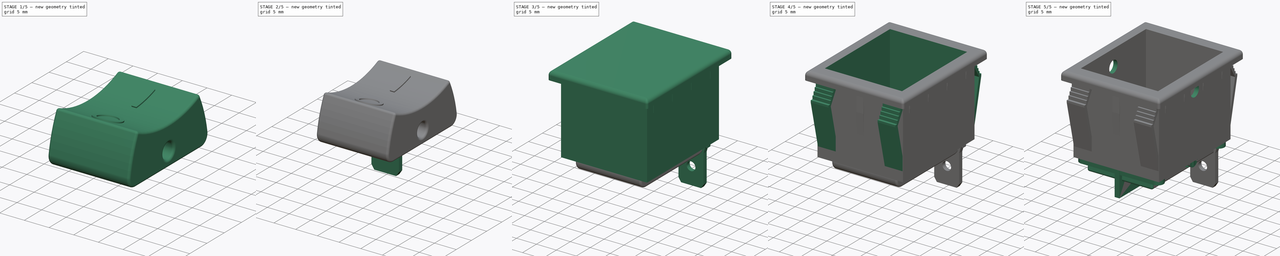
[diagram: build sequence overview — one tinted view per stage of 5, left to right]
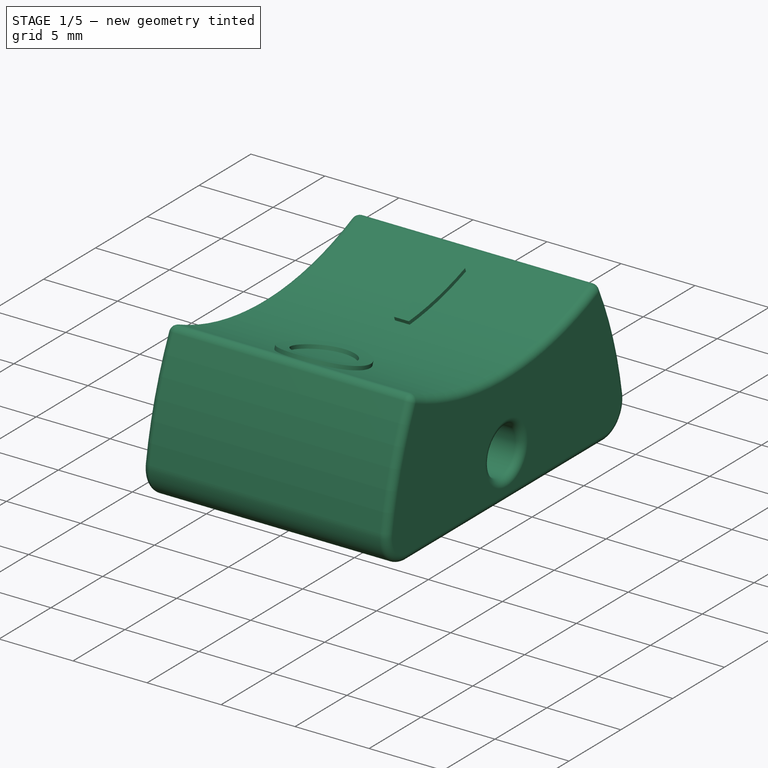
[diagram: stage 1 of 5 — iso view after this stage's code; geometry added in this stage tinted green]
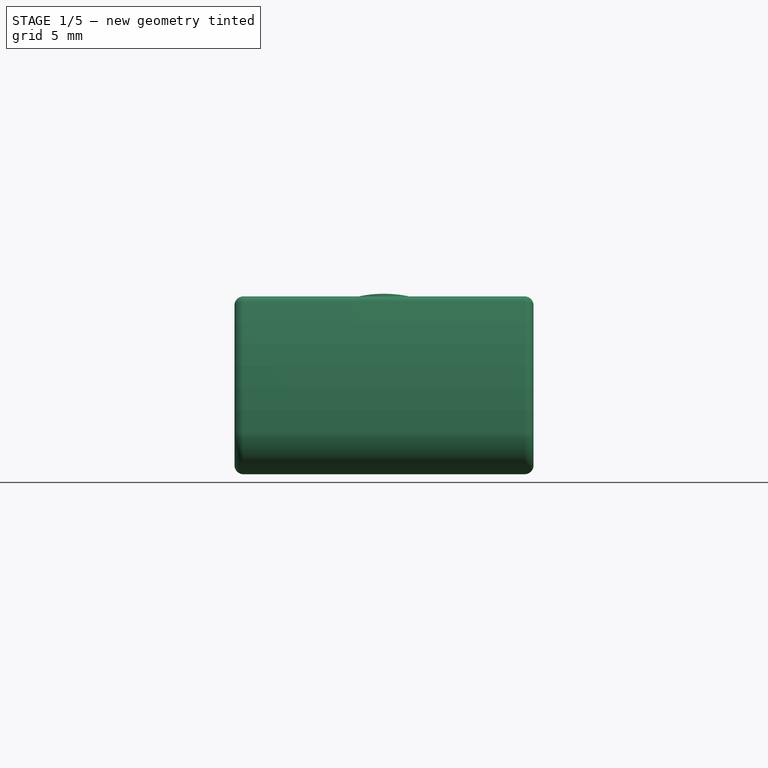
[diagram: stage 1 of 5 — front view after this stage's code; geometry added in this stage tinted green]
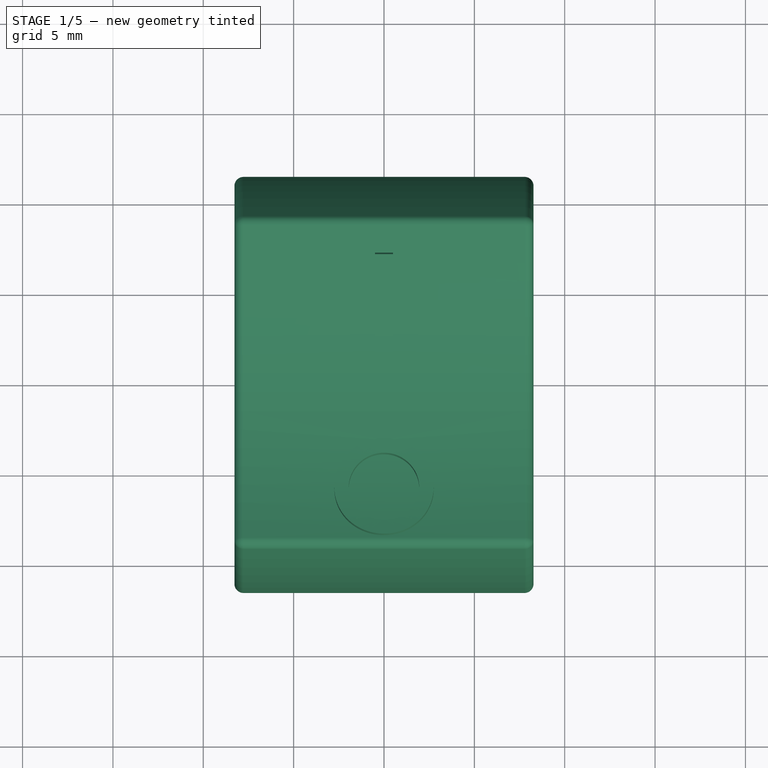
[diagram: stage 1 of 5 — top view after this stage's code; geometry added in this stage tinted green]
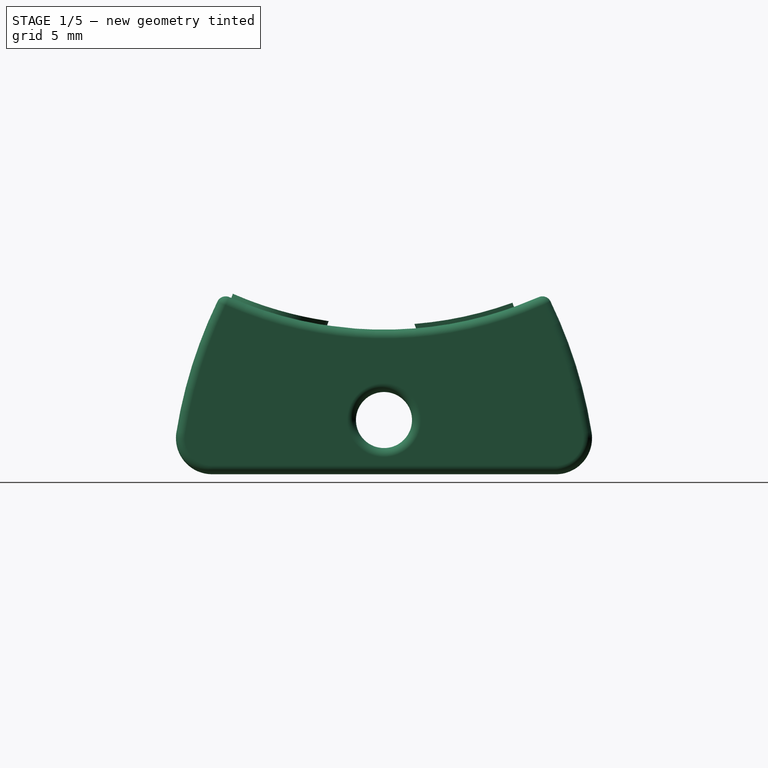
[diagram: stage 1 of 5 — right view after this stage's code; geometry added in this stage tinted green]
FCSTD DOCUMENT  (FreeCAD 0.18R4 (GitTag))
Label: Mini Rocker Switch red led
License: CreativeCommons Attribution
LicenseURL: http://creativecommons.org/licenses/by/4.0/
objects: Sketcher::SketchObject×17, PartDesign::Pad×13, PartDesign::Body×8, PartDesign::Fillet×5, PartDesign::Pocket×4, PartDesign::FeatureBase×4, PartDesign::Plane×3, PartDesign::Mirrored×2, PartDesign::MultiTransform×1, Part::Feature×1, PartDesign::LinearPattern×1, App::Part×1
note: 76 computed .brp shape members not serialized (recipe doc carries the construction recipe); baked Part::Feature solids carry a one-line shape summary decoded from their .brp

FEATURE [PartDesign::Body] Body001  label="pin"
  Group = -> [Sketch014,Pad007]
  Origin = -> Origin002
  Placement = pos=(0,0,16) rot=(0,0,1;0rad)
  Tip = -> Pad007
FEATURE [Sketcher::SketchObject] Sketch015
  MapMode = 5
  Placement = pos=(0,0,0) rot=(0.57735,0.57735,0.57735;2.0944rad)
  Support = -> [YZ_Plane003]
  sketch-geometry (7):
    g0: Circle CenterX=0 CenterY=0 CenterZ=0 NormalX=0 NormalY=0 NormalZ=1 AngleXU=0 Radius=1.55
    g1: LineSegment StartX=-11.75 StartY=-3 StartZ=0 EndX=11.75 EndY=-3 EndZ=0
    g2: ArcOfCircle CenterX=14.1907 CenterY=-4.75556 CenterZ=0 NormalX=0 NormalY=0 NormalZ=1 AngleXU=0 Radius=26 StartAngle=2.67243 EndAngle=3.07402
    g3: ArcOfCircle CenterX=0 CenterY=26.25 CenterZ=0 NormalX=0 NormalY=0 NormalZ=1 AngleXU=0 Radius=21.25 StartAngle=4.27505 EndAngle=5.14973
    g4: ArcOfCircle CenterX=-14.1907 CenterY=-4.75556 CenterZ=0 NormalX=0 NormalY=0 NormalZ=1 AngleXU=0 Radius=26 StartAngle=0.0675729 EndAngle=0.46916
    g5: LineSegment [constr] StartX=-9 StartY=7 StartZ=0 EndX=9 EndY=7 EndZ=0
    g6: LineSegment [constr] StartX=1e-16 StartY=7 StartZ=0 EndX=1e-16 EndY=5 EndZ=0
  constraints (21):
    c: Coincident(g0,g-1)
    c: Coincident(g2,g1)
    c: PointOnObject(g3,g-2)
    c: Coincident(g3,g2)
    c: Coincident(g4,g3)
    c: Coincident(g4,g1)
    c: Coincident(g5,g2)
    c: Horizontal(g5)
    c: Coincident(g3,g5)
    c: PointOnObject(g6,g3)
    c: Vertical(g6)
    c: DistanceY(g6,g6) = 2
    c: Equal(g4,g2)
    c: Symmetric(g1,g1,g-2)
    c: DistanceX(g1,g1) = 23.5
    c: DistanceY(g1,g0) = 3
    c: DistanceX(g5,g5) = 18
    c: Radius(g4) = 26
    c: Symmetric(g2,g3,g6)
    c: DistanceY(g1,g2) = 10
    c: Radius(g0) = 1.55
FEATURE [PartDesign::Pad] Pad008
  Length = 16.55
  Length2 = 100
  Midplane = true
  Placement = pos=(0,0,0) rot=(0.57735,0.57735,0.57735;2.0944rad)
  Profile = -> Sketch015
  Refine = true
  Type = 0
FEATURE [PartDesign::Plane] DatumPlane
  AttachmentOffset = pos=(0,0,0) rot=(1,0,0;0.349066rad)
  Length = 24.5285
  MapMode = 2
  Placement = pos=(0,0,0) rot=(1,0,0;0.349066rad)
  ResizeMode = 0
  Support = -> [XY_Plane003]
  Width = 30.1628
FEATURE [Sketcher::SketchObject] Sketch016
  ExternalGeometry = -> [Pad008]
  MapMode = 5
  Placement = pos=(0,0,0) rot=(1,0,0;0.349066rad)
  Support = -> [DatumPlane]
  sketch-geometry (4):
    g0: LineSegment StartX=-0.5 StartY=8.9 StartZ=0 EndX=0.5 EndY=8.9 EndZ=0
    g1: LineSegment StartX=0.5 StartY=8.9 StartZ=0 EndX=0.5 EndY=3.4 EndZ=0
    g2: LineSegment StartX=0.5 StartY=3.4 StartZ=0 EndX=-0.5 EndY=3.4 EndZ=0
    g3: LineSegment StartX=-0.5 StartY=3.4 StartZ=0 EndX=-0.5 EndY=8.9 EndZ=0
  constraints (11):
    c: Coincident(g0,g1)
    c: Coincident(g1,g2)
    c: Coincident(g2,g3)
    c: Coincident(g3,g0)
    c: Horizontal(g2)
    c: Vertical(g1)
    c: Vertical(g3)
    c: Symmetric(g0,g0,g-2)
    c: DistanceY(g1,g1) = 5.5
    c: DistanceX(g0,g0) = 1
    c: DistanceY(g-1,g1) = 3.4
FEATURE [PartDesign::Pad] Pad009
  BaseFeature = -> Pad008
  Length = 8
  Length2 = 100
  Placement = pos=(0,0,0) rot=(0.57735,0.57735,0.57735;2.0944rad)
  Profile = -> Sketch016
  Refine = true
  Type = 0
FEATURE [PartDesign::Plane] DatumPlane001
  AttachmentOffset = pos=(0,0,0) rot=(-1,0,0;0.349066rad)
  Length = 24.5285
  MapMode = 5
  Placement = pos=(0,0,0) rot=(-1,0,0;0.349066rad)
  ResizeMode = 0
  Support = -> [XY_Plane003]
  Width = 30.1628
FEATURE [Sketcher::SketchObject] Sketch017
  MapMode = 5
  Placement = pos=(0,0,0) rot=(-1,0,0;0.349066rad)
  Support = -> [DatumPlane001]
  sketch-geometry (2):
    g0: Circle CenterX=0 CenterY=-7.5 CenterZ=0 NormalX=0 NormalY=0 NormalZ=1 AngleXU=0 Radius=2.75
    g1: Circle CenterX=0 CenterY=-7.5 CenterZ=0 NormalX=0 NormalY=0 NormalZ=1 AngleXU=0 Radius=1.95
  constraints (5):
    c: PointOnObject(g0,g-2)
    c: Coincident(g1,g0)
    c: Radius(g1) = 1.95
    c: Radius(g0) = 2.75
    c: DistanceY(g0,g-1) = 7.5
FEATURE [PartDesign::Pad] Pad010
  BaseFeature = -> Pad009
  Length = 7
  Length2 = 100
  Placement = pos=(0,0,0) rot=(0.57735,0.57735,0.57735;2.0944rad)
  Profile = -> Sketch017
  Refine = true
  Type = 0
FEATURE [Sketcher::SketchObject] Sketch018
  ExternalGeometry = -> [Pad010]
  MapMode = 5
  Placement = pos=(0,0,0) rot=(0.57735,0.57735,0.57735;2.0944rad)
  Support = -> [YZ_Plane003]
  sketch-geometry (5):
    g0: ArcOfCircle CenterX=3.2e-15 CenterY=26.25 CenterZ=0 NormalX=0 NormalY=0 NormalZ=1 AngleXU=0 Radius=21 StartAngle=4.21607 EndAngle=5.20871
    g1: LineSegment StartX=-10 StartY=13.7838 StartZ=0 EndX=10 EndY=13.7838 EndZ=0
    g2: LineSegment StartX=10 StartY=13.7838 StartZ=0 EndX=10 EndY=7.78381 EndZ=0
    g3: LineSegment [constr] StartX=10 StartY=7.78381 StartZ=0 EndX=-10 EndY=7.78381 EndZ=0
    g4: LineSegment StartX=-10 StartY=7.78381 StartZ=0 EndX=-10 EndY=13.7838 EndZ=0
  constraints (14):
    c: Coincident(g0,g-3)
    c: Coincident(g1,g2)
    c: Coincident(g2,g3)
    c: Coincident(g3,g4)
    c: Coincident(g4,g1)
    c: Horizontal(g1)
    c: Horizontal(g3)
    c: Vertical(g2)
    c: Vertical(g4)
    c: Coincident(g2,g0)
    c: Coincident(g0,g3)
    c: DistanceX(g1,g1) = 20
    c: DistanceY(g2,g2) = 6
    c: Radius(g0) = 21
FEATURE [PartDesign::Pocket] Pocket007
  BaseFeature = -> Pad010
  Length = 5
  Length2 = 100
  Midplane = true
  Placement = pos=(0,0,0) rot=(0.57735,0.57735,0.57735;2.0944rad)
  Profile = -> Sketch018
  Refine = true
  Type = 1
FEATURE [PartDesign::Body] Body007
  Group = -> [Clone003]
  Origin = -> Origin008
  Placement = pos=(0,-11,0) rot=(0,0,1;0rad)
  Tip = -> Clone003
FEATURE [PartDesign::Fillet] Fillet
  Base = -> Pocket007 [Edge1,Edge2]
  BaseFeature = -> Pocket007
  Placement = pos=(0,0,0) rot=(0.57735,0.57735,0.57735;2.0944rad)
  Radius = 2
FEATURE [PartDesign::Fillet] Fillet004
  Base = -> Fillet [Face2,Face5,Edge20,Edge19]
  BaseFeature = -> Fillet
  Placement = pos=(0,0,0) rot=(0.57735,0.57735,0.57735;2.0944rad)
  Radius = 0.5
FEATURE [PartDesign::Body] Body002  label="switch"
  Group = -> [Sketch015,Pad008,DatumPlane,Sketch016,Pad009,DatumPlane001,Sketch017,Pad010,Sketch018,Pocket007,Fillet001,Fillet,Fillet004]
  Origin = -> Origin003
  Placement = pos=(0,0,16) rot=(1,0,0;6.02139rad)
  Tip = -> Fillet004
FEATURE [App::Part] Part
  Group = -> [Body,Body001,Body002,Body003,Body004,Body005,Body006,Body007]
  Origin = -> Origin001
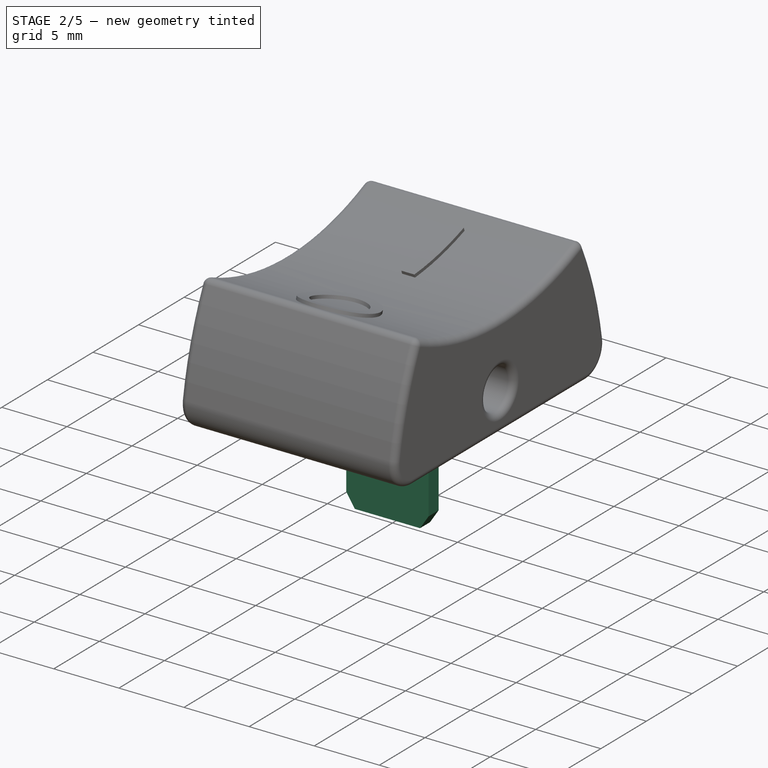
[diagram: stage 2 of 5 — iso view after this stage's code; geometry added in this stage tinted green]
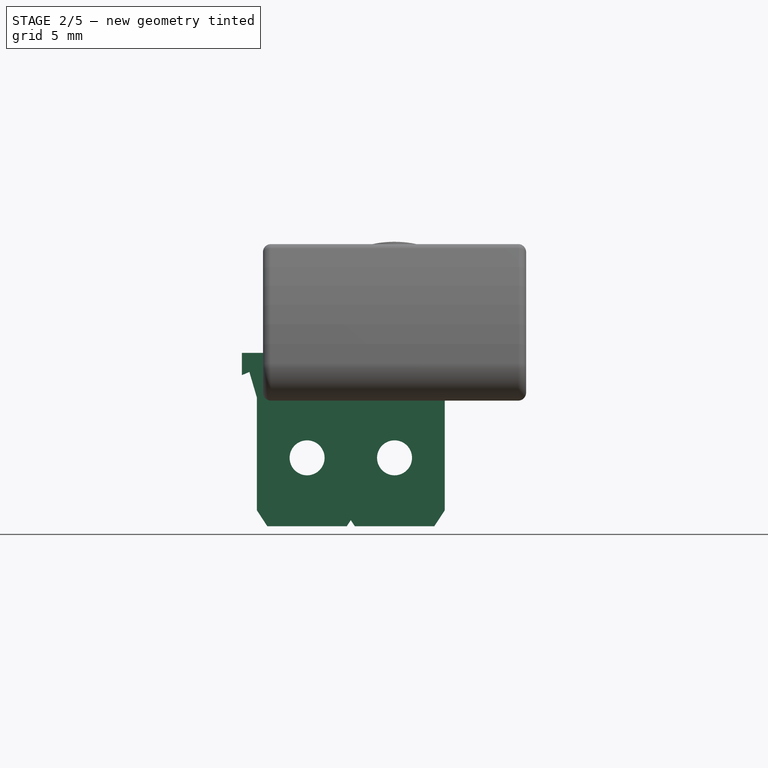
[diagram: stage 2 of 5 — front view after this stage's code; geometry added in this stage tinted green]
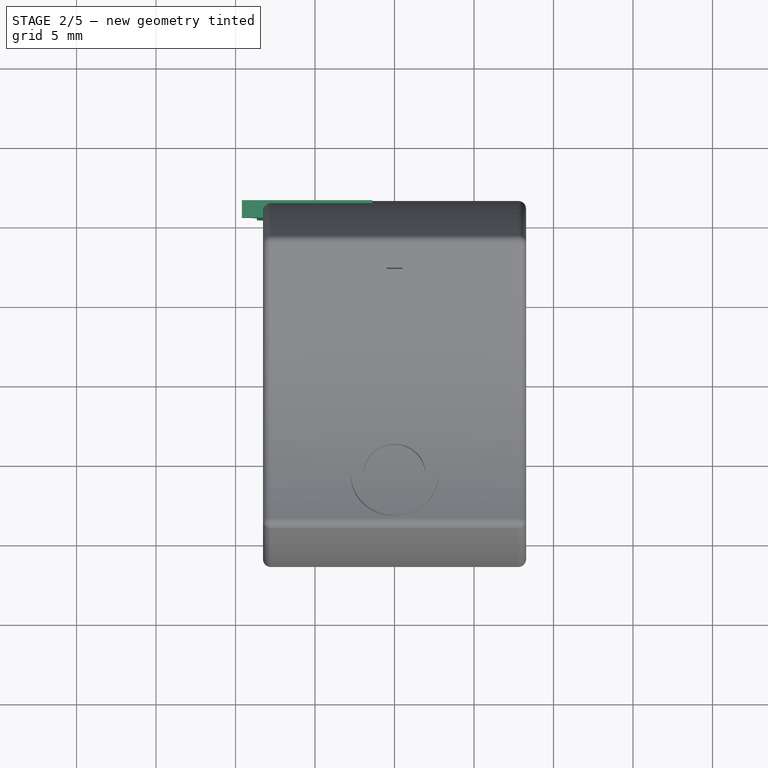
[diagram: stage 2 of 5 — top view after this stage's code; geometry added in this stage tinted green]
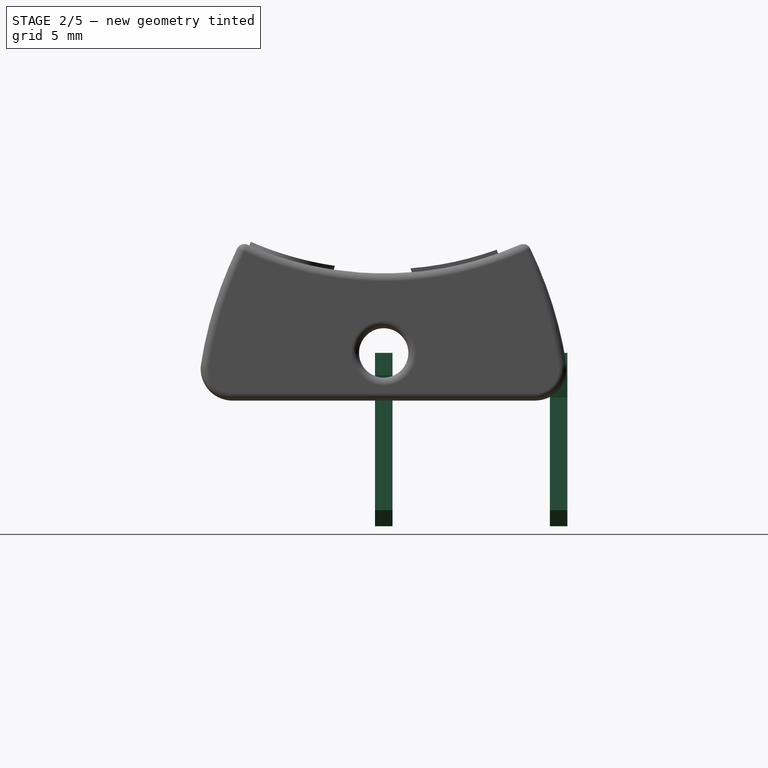
[diagram: stage 2 of 5 — right view after this stage's code; geometry added in this stage tinted green]
FEATURE [Sketcher::SketchObject] Sketch010
  MapMode = 5
  Placement = pos=(0,0,0) rot=(1,0,0;1.5708rad)
  Support = -> [XZ_Plane]
  sketch-geometry (8):
    g0: LineSegment StartX=-4.1 StartY=0 StartZ=0 EndX=4.1 EndY=0 EndZ=0
    g1: LineSegment StartX=4.1 StartY=0 StartZ=0 EndX=4.1 EndY=-2.8 EndZ=0
    g2: LineSegment StartX=3.16 StartY=-10.9 StartZ=0 EndX=-3.16 EndY=-10.9 EndZ=0
    g3: LineSegment StartX=-4.1 StartY=-2.8 StartZ=0 EndX=-4.1 EndY=0 EndZ=0
    g4: LineSegment StartX=-4.1 StartY=-2.8 StartZ=0 EndX=-3.16 EndY=-2.8 EndZ=0
    g5: LineSegment StartX=-3.16 StartY=-2.8 StartZ=0 EndX=-3.16 EndY=-10.9 EndZ=0
    g6: LineSegment StartX=3.16 StartY=-10.9 StartZ=0 EndX=3.16 EndY=-2.8 EndZ=0
    g7: LineSegment StartX=3.16 StartY=-2.8 StartZ=0 EndX=4.1 EndY=-2.8 EndZ=0
  constraints (23):
    c: Coincident(g0,g1)
    c: Coincident(g3,g0)
    c: Horizontal(g0)
    c: Horizontal(g2)
    c: Vertical(g1)
    c: Vertical(g3)
    c: Symmetric(g0,g0,g-1)
    c: DistanceX(g0,g0) = 8.2
    c: DistanceY(g2,g3) = 10.9
    c: Horizontal(g4)
    c: Coincident(g4,g5)
    c: Vertical(g5)
    c: Vertical(g6)
    c: Coincident(g6,g7)
    c: Horizontal(g7)
    c: Equal(g7,g4)
    c: Equal(g6,g5)
    c: DistanceY(g5,g5) = 8.1
    c: Coincident(g1,g7)
    c: Coincident(g3,g4)
    c: Coincident(g2,g6)
    c: Coincident(g2,g5)
    c: DistanceX(g2,g2) = 6.32
FEATURE [PartDesign::Pad] Pad006
  Length = 1.1
  Length2 = 100
  Midplane = true
  Placement = pos=(0,0,0) rot=(1,0,0;1.5708rad)
  Profile = -> Sketch010
  Refine = true
  Type = 0
FEATURE [PartDesign::Body] Body003  label="plasticbody"
  Group = -> [Sketch,Pad,Sketch001,Pad001,Fillet002,Fillet003,Sketch019,Pad011,Sketch020,Pad012,Sketch021,Pad013,Sketch022,Pocket,DatumPlane002,Sketch023,Pad014,MultiTransform,Mirrored,Mirrored001,Sketch024,Pad015,Sketch025,Pad016,LinearPattern,Sketch026,Pocket008]
  Origin = -> Origin004
  Tip = -> Pocket008
FEATURE [Sketcher::SketchObject] Sketch027
  ExternalGeometry = -> [Pad006]
  MapMode = 5
  Placement = pos=(0,0,0) rot=(1,0,0;1.5708rad)
  Support = -> [XZ_Plane]
  sketch-geometry (17):
    g0: Circle CenterX=0 CenterY=-6.6 CenterZ=0 NormalX=0 NormalY=0 NormalZ=1 AngleXU=0 Radius=1.1
    g1: LineSegment StartX=-3.16 StartY=-10.9 StartZ=0 EndX=-3.16 EndY=-9.9 EndZ=0
    g2: LineSegment StartX=-3.16 StartY=-9.9 StartZ=0 EndX=-2.5 EndY=-10.9 EndZ=0
    g3: LineSegment StartX=-2.5 StartY=-10.9 StartZ=0 EndX=-3.16 EndY=-10.9 EndZ=0
    g4: LineSegment StartX=2.5 StartY=-10.9 StartZ=0 EndX=3.16 EndY=-9.9 EndZ=0
    g5: LineSegment StartX=3.16 StartY=-9.9 StartZ=0 EndX=3.16 EndY=-10.9 EndZ=0
    g6: LineSegment StartX=3.16 StartY=-10.9 StartZ=0 EndX=2.5 EndY=-10.9 EndZ=0
    g7: LineSegment StartX=4.1 StartY=-2.8 StartZ=0 EndX=3.16 EndY=-2.8 EndZ=0
    g8: LineSegment StartX=3.16 StartY=-2.8 StartZ=0 EndX=3.63 EndY=-1.2 EndZ=0
    g9: LineSegment StartX=3.63 StartY=-1.2 StartZ=0 EndX=4.1 EndY=-1.4 EndZ=0
    g10: LineSegment StartX=4.1 StartY=-1.4 StartZ=0 EndX=4.1 EndY=-2.8 EndZ=0
    g11: LineSegment StartX=-3.16 StartY=-2.8 StartZ=0 EndX=-4.1 EndY=-2.8 EndZ=0
    g12: LineSegment StartX=-4.1 StartY=-2.8 StartZ=0 EndX=-4.1 EndY=-1.4 EndZ=0
    g13: LineSegment StartX=-4.1 StartY=-1.4 StartZ=0 EndX=-3.63 EndY=-1.2 EndZ=0
    g14: LineSegment StartX=-3.63 StartY=-1.2 StartZ=0 EndX=-3.16 EndY=-2.8 EndZ=0
    g15: LineSegment [constr] StartX=-3.63 StartY=-1.2 StartZ=0 EndX=-3.63 EndY=-2.8 EndZ=0
    g16: LineSegment [constr] StartX=3.63 StartY=-1.2 StartZ=0 EndX=3.63 EndY=-2.8 EndZ=0
  constraints (43):
    c: PointOnObject(g0,g-2)
    c: Radius(g0) = 1.1
    c: DistanceY(g-3,g0) = 4.3
    c: Coincident(g-3,g1)
    c: Vertical(g1)
    c: Coincident(g1,g2)
    c: PointOnObject(g2,g-3)
    c: Coincident(g2,g3)
    c: Coincident(g3,g1)
    c: PointOnObject(g4,g-3)
    c: Coincident(g4,g5)
    c: Coincident(g5,g-3)
    c: Vertical(g5)
    c: Coincident(g5,g6)
    c: Coincident(g6,g4)
    c: Coincident(g7,g8)
    c: Coincident(g8,g9)
    c: Coincident(g9,g10)
    c: Coincident(g10,g7)
    c: Vertical(g10)
    c: Coincident(g-5,g11)
    c: Coincident(g11,g-5)
    c: Coincident(g11,g12)
    c: Vertical(g12)
    c: Coincident(g12,g13)
    c: Coincident(g13,g14)
    c: Coincident(g14,g11)
    c: Coincident(g15,g13)
    c: Vertical(g15)
    c: Coincident(g16,g8)
    c: Vertical(g16)
    c: Coincident(g-4,g7)
    c: Symmetric(g7,g-4,g16)
    c: Coincident(g7,g-4)
    c: Symmetric(g11,g11,g15)
    c: Equal(g9,g13)
    c: Equal(g12,g10)
    c: DistanceY(g15,g15) = 1.6
    c: DistanceY(g12,g12) = 1.4
    c: Equal(g5,g1)
    c: DistanceX(g2,g4) = 5
    c: DistanceY(g1,g1) = 1
    c: Equal(g6,g3)
FEATURE [PartDesign::Pocket] Pocket009
  BaseFeature = -> Pad006
  Length = 5
  Length2 = 100
  Midplane = true
  Placement = pos=(0,0,0) rot=(1,0,0;1.5708rad)
  Profile = -> Sketch027
  Refine = true
  Type = 1
FEATURE [PartDesign::Body] Body  label="Conector"
  Group = -> [Sketch010,Pad006,Sketch027,Pocket009]
  Origin = -> Origin
  Tip = -> Pocket009
FEATURE [PartDesign::FeatureBase] Clone
  BaseFeature = -> Body
FEATURE [PartDesign::Body] Body004
  BaseFeature = -> Body
  Group = -> [Clone]
  Origin = -> Origin005
  Placement = pos=(5.5,11,0) rot=(0,0,1;0rad)
  Tip = -> Clone
FEATURE [PartDesign::FeatureBase] Clone001
  BaseFeature = -> Body
FEATURE [PartDesign::Body] Body006
  Group = -> [Clone002]
  Origin = -> Origin007
  Placement = pos=(0,-11,0) rot=(0,0,1;0rad)
  Tip = -> Clone002
FEATURE [PartDesign::FeatureBase] Clone003
  BaseFeature = -> Body005
  Placement = pos=(-5.5,11,0) rot=(0,0,1;0rad)
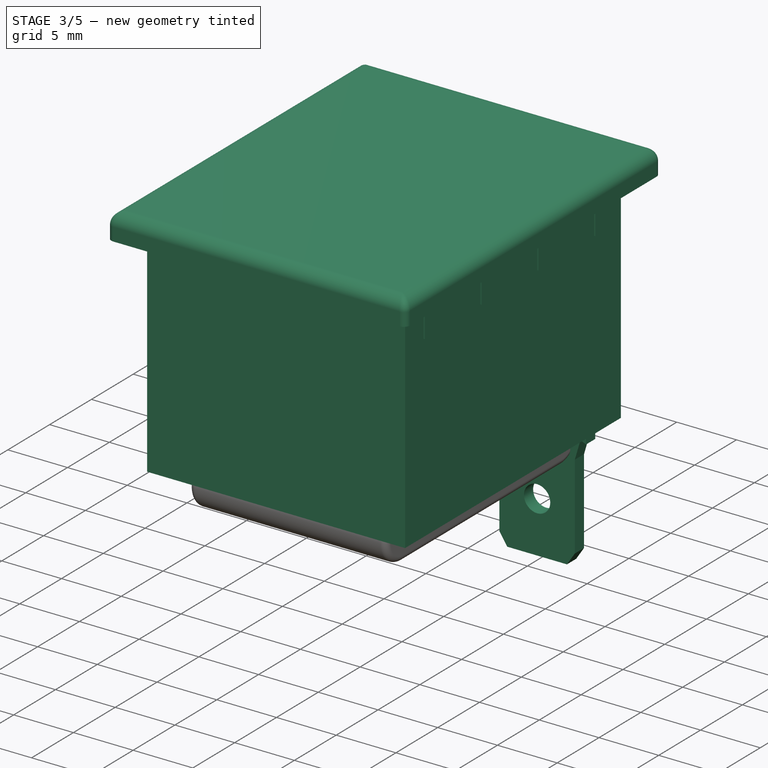
[diagram: stage 3 of 5 — iso view after this stage's code; geometry added in this stage tinted green]
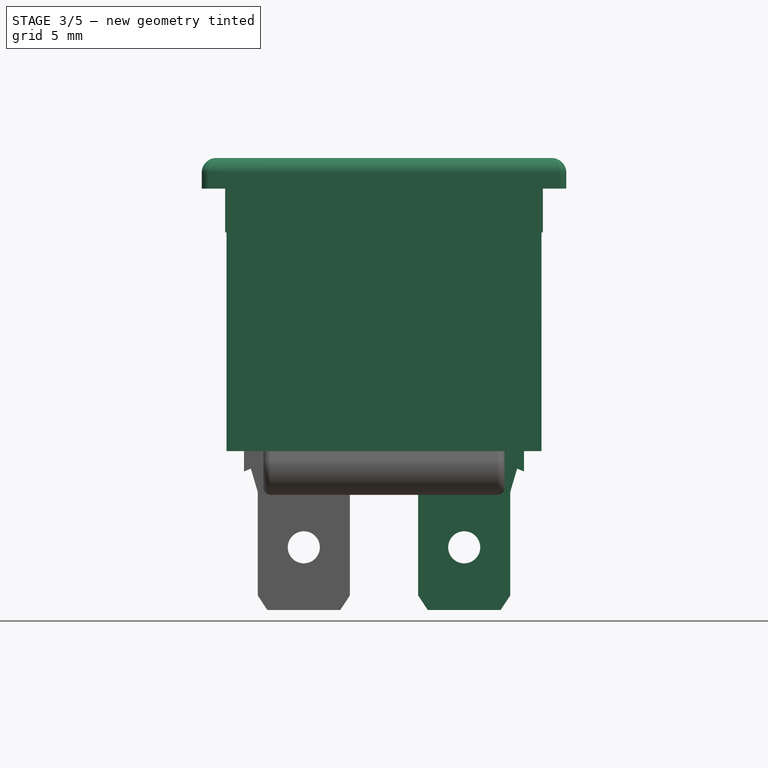
[diagram: stage 3 of 5 — front view after this stage's code; geometry added in this stage tinted green]
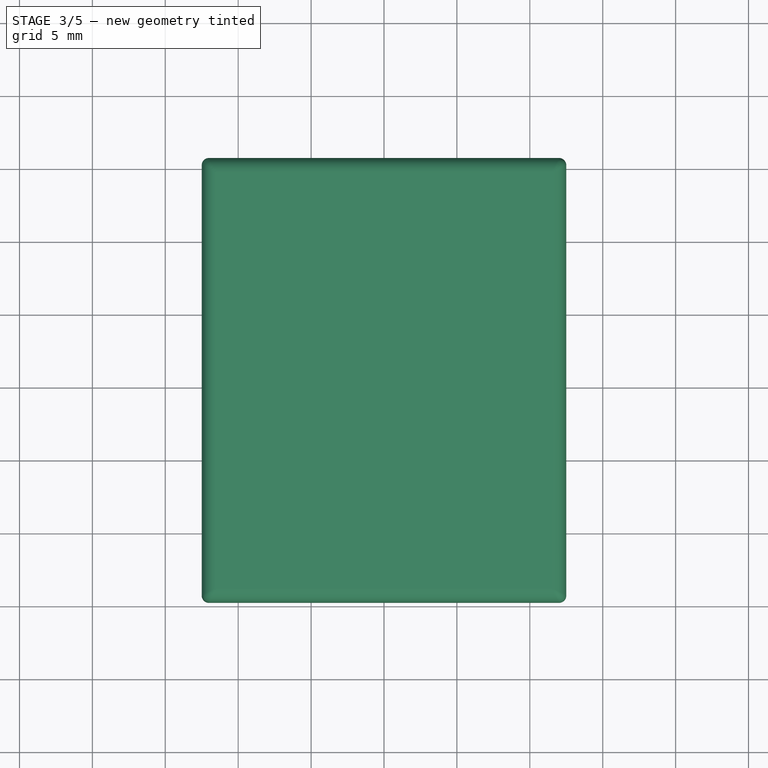
[diagram: stage 3 of 5 — top view after this stage's code; geometry added in this stage tinted green]
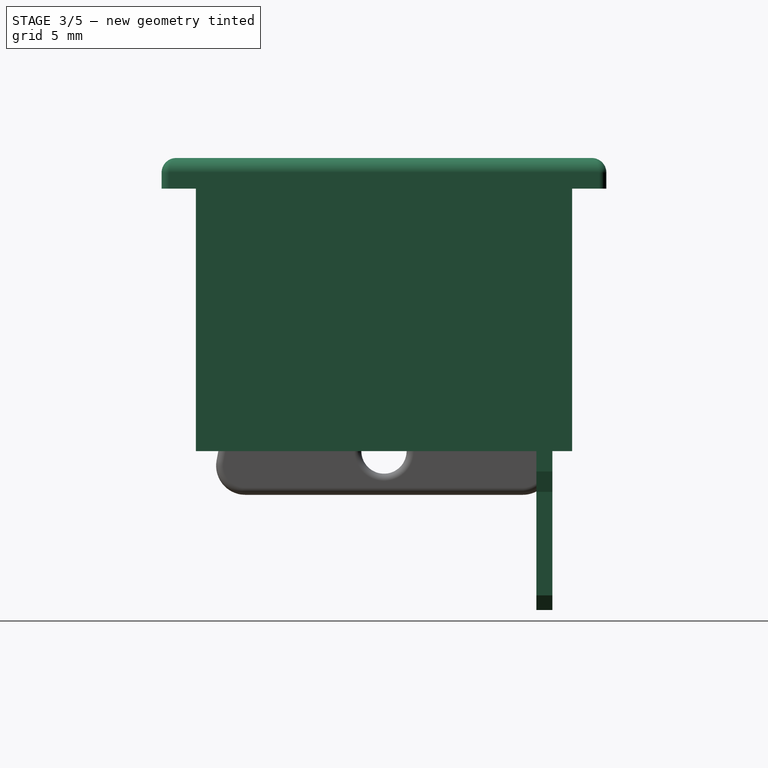
[diagram: stage 3 of 5 — right view after this stage's code; geometry added in this stage tinted green]
FEATURE [Sketcher::SketchObject] Sketch
  MapMode = 5
  Support = -> [XY_Plane004]
  sketch-geometry (4):
    g0: LineSegment StartX=-10.8 StartY=12.9 StartZ=0 EndX=10.8 EndY=12.9 EndZ=0
    g1: LineSegment StartX=10.8 StartY=12.9 StartZ=0 EndX=10.8 EndY=-12.9 EndZ=0
    g2: LineSegment StartX=10.8 StartY=-12.9 StartZ=0 EndX=-10.8 EndY=-12.9 EndZ=0
    g3: LineSegment StartX=-10.8 StartY=-12.9 StartZ=0 EndX=-10.8 EndY=12.9 EndZ=0
  constraints (11):
    c: Coincident(g0,g1)
    c: Coincident(g1,g2)
    c: Coincident(g2,g3)
    c: Coincident(g3,g0)
    c: Horizontal(g0)
    c: Horizontal(g2)
    c: Vertical(g1)
    c: Vertical(g3)
    c: Symmetric(g0,g1,g-1)
    c: DistanceX(g0,g0) = 21.6
    c: DistanceY(g1,g1) = 25.8
FEATURE [PartDesign::Pad] Pad
  Length = 18
  Length2 = 100
  Profile = -> Sketch
  Refine = true
  Type = 0
FEATURE [Sketcher::SketchObject] Sketch001
  MapMode = 5
  Placement = pos=(0,0,18) rot=(0,0,1;0rad)
  Support = -> [Pad]
  sketch-geometry (4):
    g0: LineSegment StartX=-12.5 StartY=15.25 StartZ=0 EndX=12.5 EndY=15.25 EndZ=0
    g1: LineSegment StartX=12.5 StartY=15.25 StartZ=0 EndX=12.5 EndY=-15.25 EndZ=0
    g2: LineSegment StartX=12.5 StartY=-15.25 StartZ=0 EndX=-12.5 EndY=-15.25 EndZ=0
    g3: LineSegment StartX=-12.5 StartY=-15.25 StartZ=0 EndX=-12.5 EndY=15.25 EndZ=0
  constraints (11):
    c: Coincident(g0,g1)
    c: Coincident(g1,g2)
    c: Coincident(g2,g3)
    c: Coincident(g3,g0)
    c: Horizontal(g0)
    c: Horizontal(g2)
    c: Vertical(g1)
    c: Vertical(g3)
    c: Symmetric(g1,g0,g-1)
    c: DistanceX(g0,g0) = 25
    c: DistanceY(g1,g1) = 30.5
FEATURE [PartDesign::Pad] Pad001
  BaseFeature = -> Pad
  Length = 2.1
  Length2 = 100
  Profile = -> Sketch001
  Refine = true
  Type = 0
FEATURE [PartDesign::Fillet] Fillet002
  Base = -> Pad001 [Face5]
  BaseFeature = -> Pad001
  Radius = 1
FEATURE [PartDesign::Fillet] Fillet003
  Base = -> Fillet002 [Edge18,Edge4,Edge5,Edge1]
  BaseFeature = -> Fillet002
  Radius = 0.5
FEATURE [Sketcher::SketchObject] Sketch019
  ExternalGeometry = -> [Fillet003]
  MapMode = 5
  Placement = pos=(0,0,0) rot=(0.57735,0.57735,0.57735;2.0944rad)
  Support = -> [YZ_Plane004]
  sketch-geometry (19):
    g0: LineSegment StartX=-10.7 StartY=18 StartZ=0 EndX=-9.7 EndY=18 EndZ=0
    g1: LineSegment StartX=-9.7 StartY=18 StartZ=0 EndX=-9.7 EndY=15 EndZ=0
    g2: LineSegment StartX=-9.7 StartY=15 StartZ=0 EndX=-10.7 EndY=15 EndZ=0
    g3: LineSegment StartX=-10.7 StartY=15 StartZ=0 EndX=-10.7 EndY=18 EndZ=0
    g4: LineSegment StartX=-3.9 StartY=18 StartZ=0 EndX=-2.9 EndY=18 EndZ=0
    g5: LineSegment StartX=-2.9 StartY=18 StartZ=0 EndX=-2.9 EndY=15 EndZ=0
    g6: LineSegment StartX=-2.9 StartY=15 StartZ=0 EndX=-3.9 EndY=15 EndZ=0
    g7: LineSegment StartX=-3.9 StartY=15 StartZ=0 EndX=-3.9 EndY=18 EndZ=0
    g8: LineSegment StartX=2.9 StartY=18 StartZ=0 EndX=3.9 EndY=18 EndZ=0
    g9: LineSegment StartX=3.9 StartY=18 StartZ=0 EndX=3.9 EndY=15 EndZ=0
    g10: LineSegment StartX=3.9 StartY=15 StartZ=0 EndX=2.9 EndY=15 EndZ=0
    g11: LineSegment StartX=2.9 StartY=15 StartZ=0 EndX=2.9 EndY=18 EndZ=0
    g12: LineSegment StartX=9.7 StartY=18 StartZ=0 EndX=10.7 EndY=18 EndZ=0
    g13: LineSegment StartX=10.7 StartY=18 StartZ=0 EndX=10.7 EndY=15 EndZ=0
    g14: LineSegment StartX=10.7 StartY=15 StartZ=0 EndX=9.7 EndY=15 EndZ=0
    g15: LineSegment StartX=9.7 StartY=15 StartZ=0 EndX=9.7 EndY=18 EndZ=0
    g16: LineSegment [constr] StartX=-9.7 StartY=15 StartZ=0 EndX=-3.9 EndY=15 EndZ=0
    g17: LineSegment [constr] StartX=-2.9 StartY=15 StartZ=0 EndX=2.9 EndY=15 EndZ=0
    g18: LineSegment [constr] StartX=3.9 StartY=15 StartZ=0 EndX=9.7 EndY=15 EndZ=0
  constraints (53):
    c: Coincident(g0,g1)
    c: Coincident(g1,g2)
    c: Coincident(g2,g3)
    c: Coincident(g3,g0)
    c: Horizontal(g0)
    c: Horizontal(g2)
    c: Vertical(g1)
    c: Vertical(g3)
    c: PointOnObject(g0,g-3)
    c: Coincident(g4,g5)
    c: Coincident(g5,g6)
    c: Coincident(g6,g7)
    c: Coincident(g7,g4)
    c: Horizontal(g4)
    c: Horizontal(g6)
    c: Vertical(g5)
    c: Vertical(g7)
    c: Coincident(g8,g9)
    c: Coincident(g9,g10)
    c: Coincident(g10,g11)
    c: Coincident(g11,g8)
    c: Horizontal(g8)
    c: Horizontal(g10)
    c: Vertical(g9)
    c: Vertical(g11)
    c: Coincident(g12,g13)
    c: Coincident(g13,g14)
    c: Coincident(g14,g15)
    c: Coincident(g15,g12)
    c: Horizontal(g12)
    c: Horizontal(g14)
    c: Vertical(g13)
    c: Vertical(g15)
    c: PointOnObject(g12,g-3)
    c: Equal(g14,g10)
    c: Equal(g10,g6)
    c: Equal(g6,g2)
    c: Equal(g1,g5)
    c: Equal(g5,g9)
    c: Equal(g9,g13)
    c: Coincident(g16,g1)
    c: Coincident(g16,g6)
    c: Horizontal(g16)
    c: Coincident(g17,g5)
    c: Coincident(g18,g9)
    c: Coincident(g18,g14)
    c: Coincident(g10,g17)
    c: Equal(g17,g16)
    c: Equal(g16,g18)
    c: Symmetric(g10,g5,g-2)
    c: DistanceX(g0,g0) = 1
    c: DistanceY(g3,g3) = 3
    c: DistanceX(g18,g18) = 5.8
FEATURE [PartDesign::Pad] Pad011
  BaseFeature = -> Fillet003
  Length = 21.8
  Length2 = 100
  Midplane = true
  Profile = -> Sketch019
  Refine = true
  Type = 0
FEATURE [PartDesign::Body] Body005
  BaseFeature = -> Body
  Group = -> [Clone001]
  Origin = -> Origin006
  Placement = pos=(-5.5,11,0) rot=(0,0,1;0rad)
  Tip = -> Clone001
FEATURE [PartDesign::FeatureBase] Clone002
  BaseFeature = -> Body004
  Placement = pos=(5.5,11,0) rot=(0,0,1;0rad)
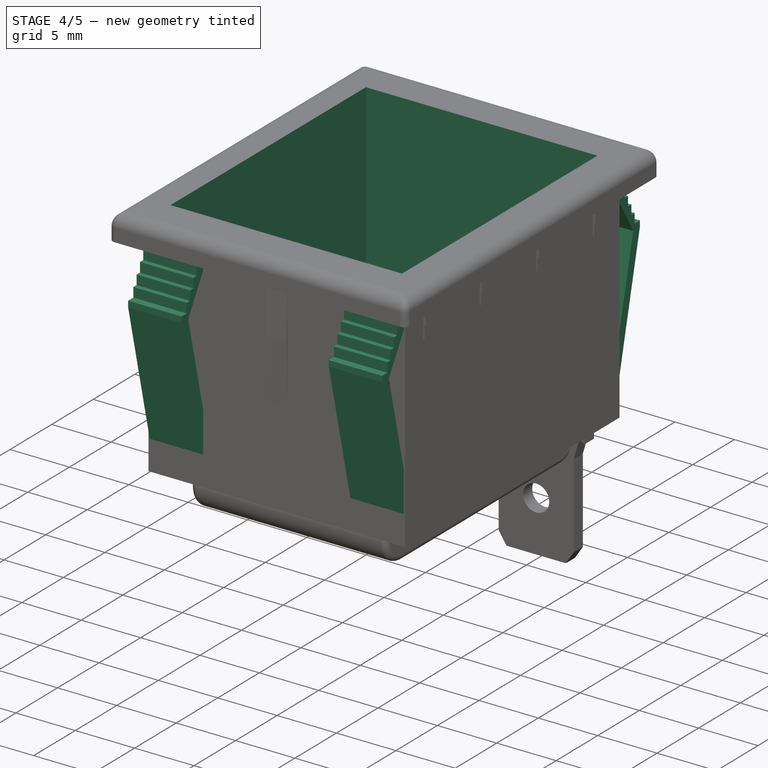
[diagram: stage 4 of 5 — iso view after this stage's code; geometry added in this stage tinted green]
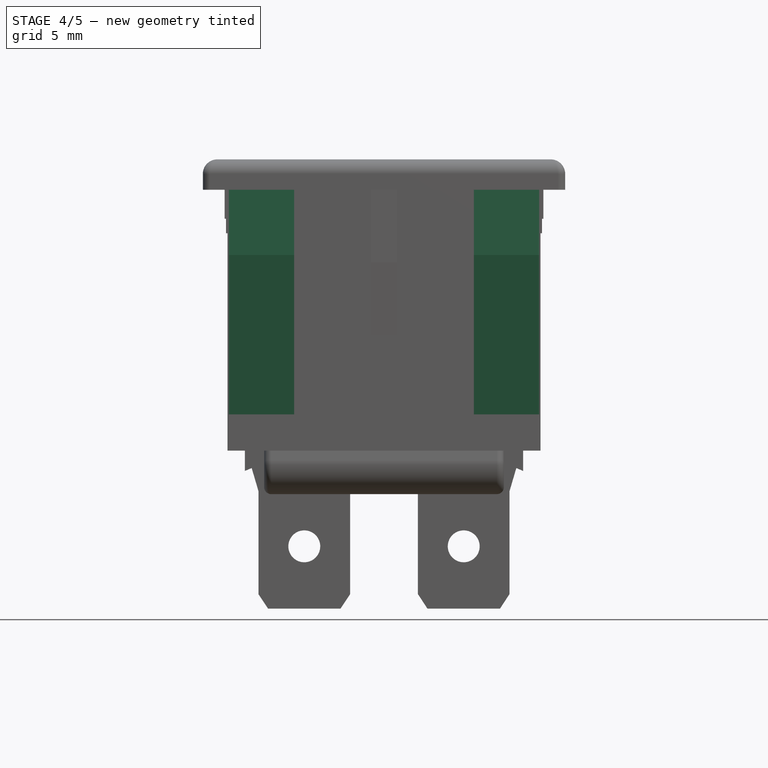
[diagram: stage 4 of 5 — front view after this stage's code; geometry added in this stage tinted green]
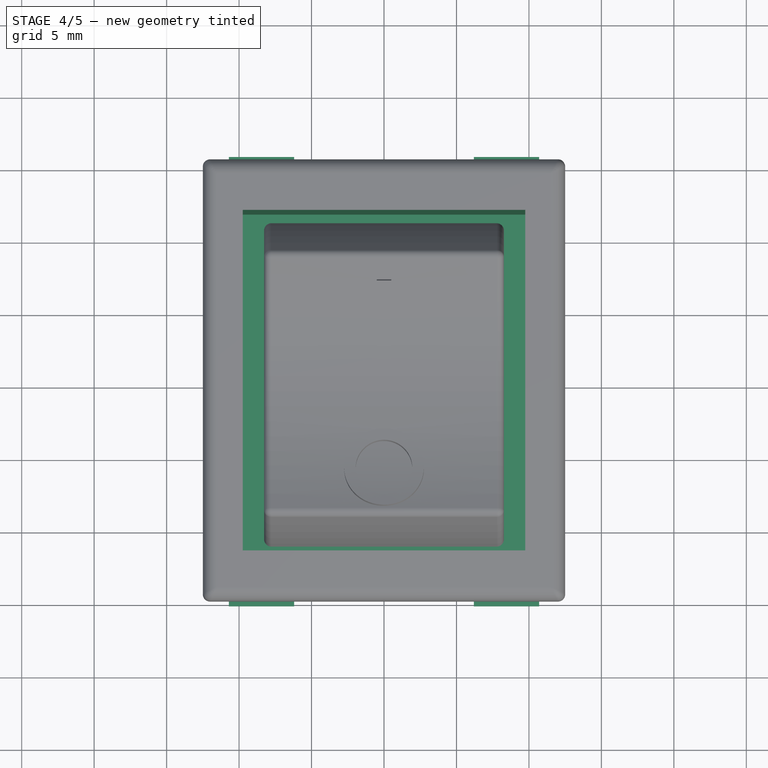
[diagram: stage 4 of 5 — top view after this stage's code; geometry added in this stage tinted green]
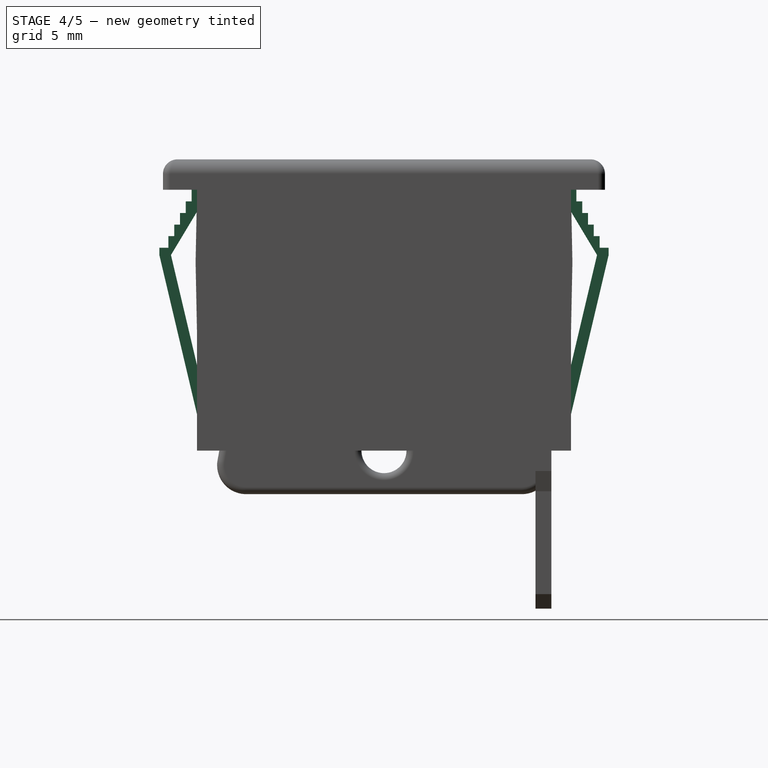
[diagram: stage 4 of 5 — right view after this stage's code; geometry added in this stage tinted green]
FEATURE [Sketcher::SketchObject] Sketch020
  ExternalGeometry = -> [Pad011]
  MapMode = 5
  Placement = pos=(0,0,0) rot=(0.57735,0.57735,0.57735;2.0944rad)
  Support = -> [YZ_Plane004]
  sketch-geometry (16):
    g0: LineSegment StartX=-10.7 StartY=18 StartZ=0 EndX=-9.7 EndY=18 EndZ=0
    g1: LineSegment StartX=-9.7 StartY=18 StartZ=0 EndX=-9.7 EndY=16 EndZ=0
    g2: LineSegment StartX=-9.7 StartY=16 StartZ=0 EndX=-10.7 EndY=16 EndZ=0
    g3: LineSegment StartX=-10.7 StartY=16 StartZ=0 EndX=-10.7 EndY=18 EndZ=0
    g4: LineSegment StartX=-3.9 StartY=18 StartZ=0 EndX=-2.9 EndY=18 EndZ=0
    g5: LineSegment StartX=-2.9 StartY=18 StartZ=0 EndX=-2.9 EndY=16 EndZ=0
    g6: LineSegment StartX=-2.9 StartY=16 StartZ=0 EndX=-3.9 EndY=16 EndZ=0
    g7: LineSegment StartX=-3.9 StartY=16 StartZ=0 EndX=-3.9 EndY=18 EndZ=0
    g8: LineSegment StartX=2.9 StartY=18 StartZ=0 EndX=3.9 EndY=18 EndZ=0
    g9: LineSegment StartX=3.9 StartY=18 StartZ=0 EndX=3.9 EndY=16 EndZ=0
    g10: LineSegment StartX=3.9 StartY=16 StartZ=0 EndX=2.9 EndY=16 EndZ=0
    g11: LineSegment StartX=2.9 StartY=16 StartZ=0 EndX=2.9 EndY=18 EndZ=0
    g12: LineSegment StartX=9.7 StartY=18 StartZ=0 EndX=10.7 EndY=18 EndZ=0
    g13: LineSegment StartX=10.7 StartY=18 StartZ=0 EndX=10.7 EndY=16 EndZ=0
    g14: LineSegment StartX=10.7 StartY=16 StartZ=0 EndX=9.7 EndY=16 EndZ=0
    g15: LineSegment StartX=9.7 StartY=16 StartZ=0 EndX=9.7 EndY=18 EndZ=0
  constraints (43):
    c: Coincident(g0,g1)
    c: Coincident(g1,g2)
    c: Coincident(g2,g3)
    c: Coincident(g3,g0)
    c: Horizontal(g2)
    c: Vertical(g1)
    c: Vertical(g3)
    c: Coincident(g0,g-3)
    c: Coincident(g4,g5)
    c: Coincident(g5,g6)
    c: Coincident(g6,g7)
    c: Coincident(g7,g4)
    c: Horizontal(g4)
    c: Horizontal(g6)
    c: Vertical(g5)
    c: Vertical(g7)
    c: Coincident(g4,g-4)
    c: Coincident(g8,g9)
    c: Coincident(g9,g10)
    c: Coincident(g10,g11)
    c: Coincident(g11,g8)
    c: Horizontal(g8)
    c: Horizontal(g10)
    c: Vertical(g9)
    c: Vertical(g11)
    c: Coincident(g8,g-5)
    c: Coincident(g12,g13)
    c: Coincident(g13,g14)
    c: Coincident(g14,g15)
    c: Coincident(g15,g12)
    c: Horizontal(g12)
    c: Horizontal(g14)
    c: Vertical(g13)
    c: Vertical(g15)
    c: Coincident(g12,g-6)
    c: Equal(g3,g7)
    c: Equal(g7,g11)
    c: Equal(g11,g15)
    c: Equal(g12,g8)
    c: Equal(g8,g4)
    c: Equal(g4,g0)
    c: Coincident(g0,g-7)
    c: DistanceY(g3,g3) = 2
FEATURE [PartDesign::Pad] Pad012
  BaseFeature = -> Pad011
  Length = 22
  Length2 = 100
  Midplane = true
  Profile = -> Sketch020
  Refine = true
  Type = 0
FEATURE [Sketcher::SketchObject] Sketch021
  ExternalGeometry = -> [Pad012]
  MapMode = 5
  Placement = pos=(0,0,0) rot=(0.57735,0.57735,0.57735;2.0944rad)
  Support = -> [YZ_Plane004]
  sketch-geometry (6):
    g0: LineSegment StartX=-12.9 StartY=18 StartZ=0 EndX=-12.9 EndY=8 EndZ=0
    g1: LineSegment StartX=-12.9 StartY=8 StartZ=0 EndX=-13 EndY=13 EndZ=0
    g2: LineSegment StartX=-13 StartY=13 StartZ=0 EndX=-12.9 EndY=18 EndZ=0
    g3: LineSegment StartX=12.9 StartY=18 StartZ=0 EndX=12.9 EndY=8 EndZ=0
    g4: LineSegment StartX=12.9 StartY=8 StartZ=0 EndX=13 EndY=13 EndZ=0
    g5: LineSegment StartX=13 StartY=13 StartZ=0 EndX=12.9 EndY=18 EndZ=0
  constraints (16):
    c: Coincident(g-3,g0)
    c: PointOnObject(g0,g-3)
    c: Coincident(g0,g1)
    c: Coincident(g1,g2)
    c: Coincident(g2,g0)
    c: DistanceY(g0,g0) = 10
    c: DistanceX(g1,g-1) = 13
    c: Equal(g2,g1)
    c: Coincident(g-4,g3)
    c: Vertical(g3)
    c: Coincident(g3,g4)
    c: Coincident(g4,g5)
    c: Coincident(g5,g3)
    c: Equal(g4,g5)
    c: Equal(g5,g2)
    c: Equal(g3,g0)
FEATURE [PartDesign::Pad] Pad013
  BaseFeature = -> Pad012
  Length = 1.8
  Length2 = 100
  Midplane = true
  Profile = -> Sketch021
  Refine = true
  Type = 0
FEATURE [Sketcher::SketchObject] Sketch022
  MapMode = 5
  Placement = pos=(0,0,20.1) rot=(0,0,1;0rad)
  Support = -> [Pad013]
  sketch-geometry (4):
    g0: LineSegment StartX=-9.75 StartY=11.75 StartZ=0 EndX=9.75 EndY=11.75 EndZ=0
    g1: LineSegment StartX=9.75 StartY=11.75 StartZ=0 EndX=9.75 EndY=-11.75 EndZ=0
    g2: LineSegment StartX=9.75 StartY=-11.75 StartZ=0 EndX=-9.75 EndY=-11.75 EndZ=0
    g3: LineSegment StartX=-9.75 StartY=-11.75 StartZ=0 EndX=-9.75 EndY=11.75 EndZ=0
  constraints (11):
    c: Coincident(g0,g1)
    c: Coincident(g1,g2)
    c: Coincident(g2,g3)
    c: Coincident(g3,g0)
    c: Horizontal(g0)
    c: Horizontal(g2)
    c: Vertical(g1)
    c: Vertical(g3)
    c: DistanceX(g0,g0) = 19.5
    c: DistanceY(g1,g1) = 23.5
    c: Symmetric(g1,g0,g-1)
FEATURE [PartDesign::Pocket] Pocket
  BaseFeature = -> Pad013
  Length = 19.1
  Length2 = 100
  Profile = -> Sketch022
  Refine = true
  Type = 0
FEATURE [PartDesign::Plane] DatumPlane002
  AttachmentOffset = pos=(0,0,6.2) rot=(0,0,1;0rad)
  Length = 37.1093
  MapMode = 5
  Placement = pos=(6.2,-1.4e-15,1.4e-15) rot=(0.57735,0.57735,0.57735;2.0944rad)
  ResizeMode = 0
  Support = -> [YZ_Plane004]
  Width = 36.2093
FEATURE [Sketcher::SketchObject] Sketch023
  ExternalGeometry = -> [Pocket]
  MapMode = 5
  Placement = pos=(6.2,-1.4e-15,1.4e-15) rot=(0.57735,0.57735,0.57735;2.0944rad)
  Support = -> [DatumPlane002]
  sketch-geometry (23):
    g0: LineSegment StartX=-12.9 StartY=18 StartZ=0 EndX=-12.9 EndY=16.4934 EndZ=0
    g1: LineSegment StartX=-12.9 StartY=16.4934 StartZ=0 EndX=-14.7 EndY=13.5 EndZ=0
    g2: LineSegment StartX=-14.7 StartY=13.5 StartZ=0 EndX=-12.9 EndY=5.88462 EndZ=0
    g3: LineSegment StartX=-12.9 StartY=5.88462 StartZ=0 EndX=-12.9 EndY=2.5 EndZ=0
    g4: LineSegment StartX=-12.9 StartY=2.5 StartZ=0 EndX=-15.5 EndY=13.5 EndZ=0
    g5: LineSegment StartX=-15.5 StartY=13.5 StartZ=0 EndX=-15.5 EndY=14 EndZ=0
    g6: LineSegment StartX=-15.5 StartY=14 StartZ=0 EndX=-14.8751 EndY=14 EndZ=0
    g7: LineSegment StartX=-14.8751 StartY=14 StartZ=0 EndX=-14.8751 EndY=14.8 EndZ=0
    g8: LineSegment StartX=-14.8751 StartY=14.8 StartZ=0 EndX=-14.4751 EndY=14.8 EndZ=0
    g9: LineSegment StartX=-14.4751 StartY=14.8 StartZ=0 EndX=-14.4751 EndY=15.6 EndZ=0
    g10: LineSegment StartX=-14.4751 StartY=15.6 StartZ=0 EndX=-14.0751 EndY=15.6 EndZ=0
    g11: LineSegment StartX=-14.0751 StartY=15.6 StartZ=0 EndX=-14.0751 EndY=16.4 EndZ=0
    g12: LineSegment StartX=-14.0751 StartY=16.4 StartZ=0 EndX=-13.6751 EndY=16.4 EndZ=0
    g13: LineSegment StartX=-13.6751 StartY=16.4 StartZ=0 EndX=-13.6751 EndY=17.2 EndZ=0
    g14: LineSegment StartX=-13.6751 StartY=17.2 StartZ=0 EndX=-13.2751 EndY=17.2 EndZ=0
    g15: LineSegment StartX=-13.2751 StartY=17.2 StartZ=0 EndX=-13.2751 EndY=18 EndZ=0
    g16: LineSegment StartX=-13.2751 StartY=18 StartZ=0 EndX=-12.9 EndY=18 EndZ=0
    g17: LineSegment [constr] StartX=-13.2751 StartY=17.2 StartZ=0 EndX=-13.0875 EndY=16.8467 EndZ=0
    g18: LineSegment [constr] StartX=-12.9 StartY=16.4934 StartZ=0 EndX=-13.0875 EndY=16.8467 EndZ=0
    g19: LineSegment [constr] StartX=-13.0875 StartY=16.8467 StartZ=0 EndX=-15.1 EndY=13.5 EndZ=0
    g20: LineSegment [constr] StartX=-14.7 StartY=13.5 StartZ=0 EndX=-15.1 EndY=13.5 EndZ=0
    g21: LineSegment [constr] StartX=-15.1 StartY=13.5 StartZ=0 EndX=-15.5 EndY=13.5 EndZ=0
    g22: LineSegment [constr] StartX=-15.1 StartY=13.5 StartZ=0 EndX=-12.9 EndY=4.19231 EndZ=0
  constraints (65):
    c: Coincident(g-3,g0)
    c: PointOnObject(g0,g-3)
    c: Coincident(g0,g1)
    c: Coincident(g1,g2)
    c: PointOnObject(g2,g-3)
    c: Coincident(g2,g3)
    c: PointOnObject(g3,g-3)
    c: Coincident(g3,g4)
    c: Coincident(g4,g5)
    c: Coincident(g5,g6)
    c: Horizontal(g6)
    c: Coincident(g6,g7)
    c: Coincident(g7,g8)
    c: Coincident(g8,g9)
    c: Vertical(g9)
    c: Coincident(g9,g10)
    c: Coincident(g10,g11)
    c: Vertical(g11)
    c: Coincident(g11,g12)
    c: Coincident(g12,g13)
    c: Vertical(g13)
    c: Coincident(g13,g14)
    c: Coincident(g14,g15)
    c: Vertical(g15)
    c: Coincident(g15,g16)
    c: Coincident(g16,g0)
    c: Horizontal(g16)
    c: Equal(g7,g9)
    c: Equal(g9,g11)
    c: Equal(g11,g13)
    c: Equal(g13,g15)
    c: Horizontal(g14)
    c: Horizontal(g12)
    c: Horizontal(g10)
    c: Horizontal(g8)
    c: DistanceY(g15,g15) = 0.8
    c: DistanceY(g3,g0) = 15.5
    c: DistanceY(g4,g15) = 4.5
    c: DistanceX(g5,g-1) = 15.5
    c: Vertical(g5)
    c: Equal(g14,g12)
    c: Equal(g12,g10)
    c: Equal(g10,g8)
    c: Vertical(g7)
    c: DistanceX(g14,g14) = 0.4
    c: Coincident(g17,g14)
    c: Coincident(g18,g0)
    c: Coincident(g19,g17)
    c: Parallel(g18,g17)
    c: Distance(g18) = 0.4
    c: Coincident(g20,g1)
    c: Coincident(g20,g19)
    c: Horizontal(g20)
    c: Coincident(g21,g19)
    c: Coincident(g21,g4)
    c: Coincident(g22,g19)
    c: PointOnObject(g22,g3)
    c: Parallel(g2,g22)
    c: Parallel(g19,g1)
    c: Parallel(g21,g20)
    c: Coincident(g17,g18)
    c: Equal(g18,g17)
    c: Equal(g21,g20)
    c: Equal(g20,g18)
    c: Parallel(g4,g22)
FEATURE [PartDesign::Pad] Pad014
  BaseFeature = -> Pocket
  Length = 4.5
  Length2 = 100
  Profile = -> Sketch023
  Refine = true
  Type = 0
FEATURE [PartDesign::Mirrored] Mirrored
  MirrorPlane = -> XZ_Plane004
  Refine = true
FEATURE [PartDesign::Mirrored] Mirrored001
  MirrorPlane = -> YZ_Plane004
  Refine = true
FEATURE [PartDesign::MultiTransform] MultiTransform
  BaseFeature = -> Pad014
  Originals = -> [Pad014]
  Refine = true
  Transformations = -> [Mirrored,Mirrored001]
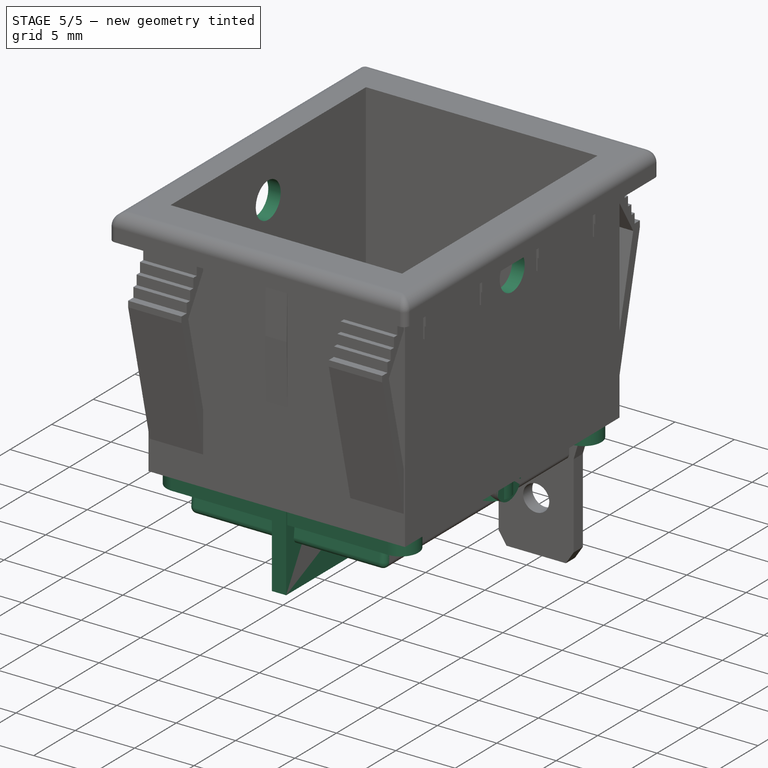
[diagram: stage 5 of 5 — iso view after this stage's code; geometry added in this stage tinted green]
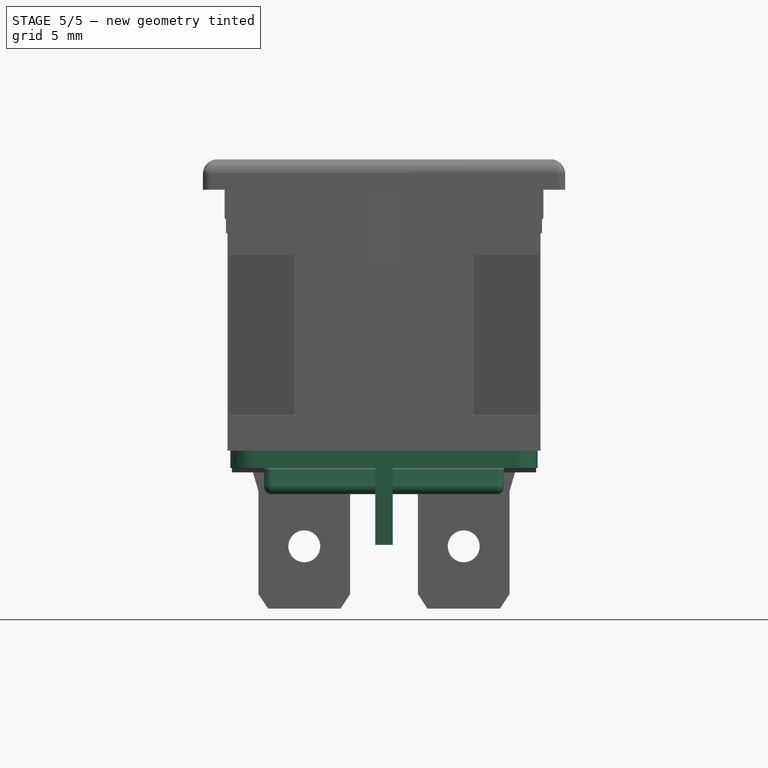
[diagram: stage 5 of 5 — front view after this stage's code; geometry added in this stage tinted green]
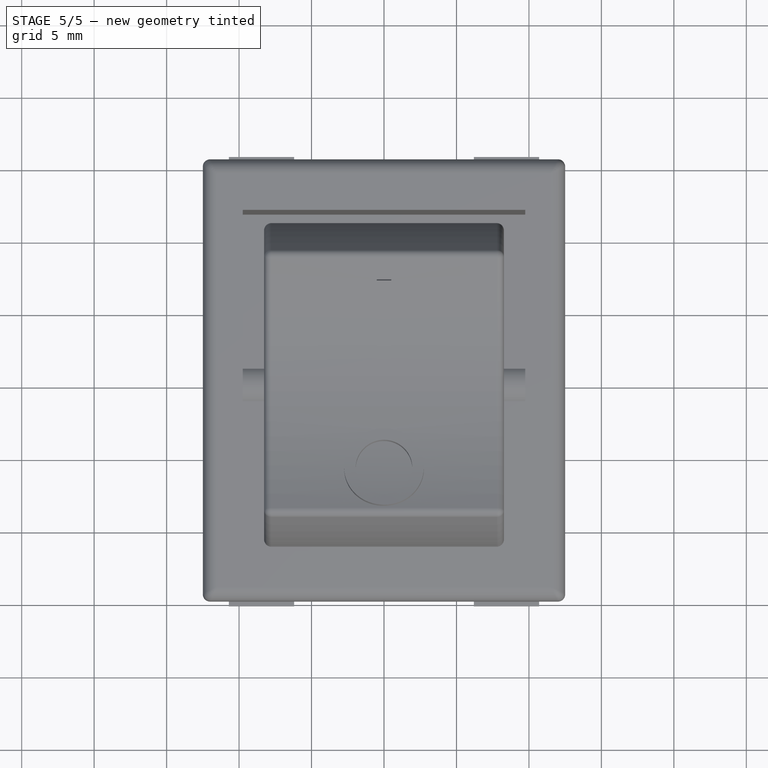
[diagram: stage 5 of 5 — top view after this stage's code; geometry added in this stage tinted green]
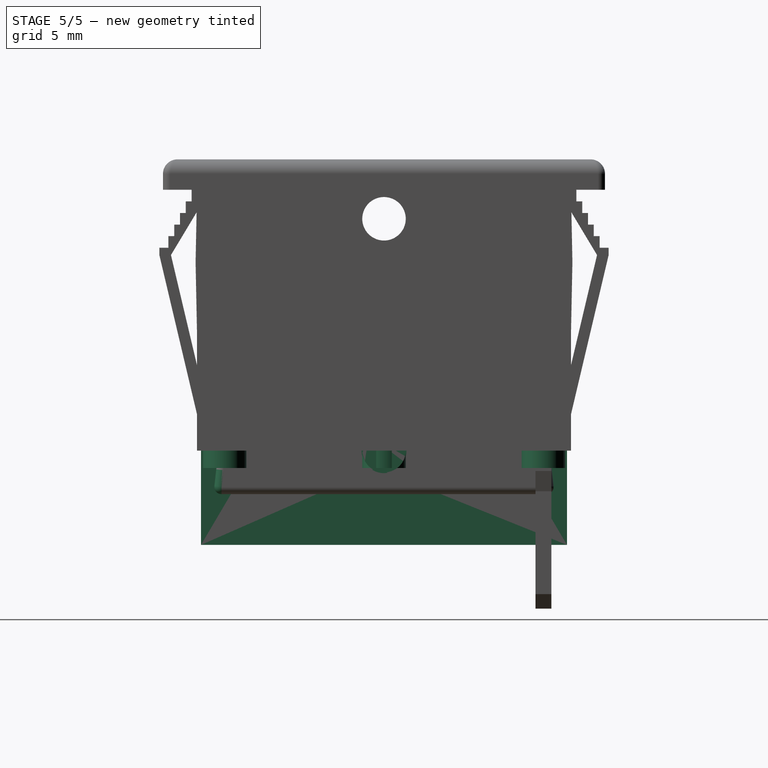
[diagram: stage 5 of 5 — right view after this stage's code; geometry added in this stage tinted green]
FEATURE [Sketcher::SketchObject] Sketch014
  MapMode = 5
  Placement = pos=(0,0,0) rot=(0.57735,0.57735,0.57735;2.0944rad)
  Support = -> [YZ_Plane002]
  sketch-geometry (1):
    g0: Circle CenterX=0 CenterY=0 CenterZ=0 NormalX=0 NormalY=0 NormalZ=1 AngleXU=0 Radius=1.5
  constraints (2):
    c: Coincident(g0,g-1)
    c: Radius(g0) = 1.5
FEATURE [PartDesign::Pad] Pad007
  Length = 21
  Length2 = 100
  Midplane = true
  Placement = pos=(0,0,0) rot=(0.57735,0.57735,0.57735;2.0944rad)
  Profile = -> Sketch014
  Refine = true
  Type = 0
FEATURE [PartDesign::Fillet] Fillet001
  Base = -> Pocket007 [Face1,Face3,Face2,Edge11,Edge13]
  BaseFeature = -> Pocket007
  Placement = pos=(0,0,0) rot=(0.57735,0.57735,0.57735;2.0944rad)
  Radius = 0.5
FEATURE [Sketcher::SketchObject] Sketch024
  MapMode = 5
  Placement = pos=(0,0,0) rot=(1,0,0;3.14159rad)
  Support = -> [MultiTransform]
  sketch-geometry (4):
    g0: LineSegment StartX=-0.6 StartY=12.625 StartZ=0 EndX=0.6 EndY=12.625 EndZ=0
    g1: LineSegment StartX=0.6 StartY=12.625 StartZ=0 EndX=0.6 EndY=-12.625 EndZ=0
    g2: LineSegment StartX=0.6 StartY=-12.625 StartZ=0 EndX=-0.6 EndY=-12.625 EndZ=0
    g3: LineSegment StartX=-0.6 StartY=-12.625 StartZ=0 EndX=-0.6 EndY=12.625 EndZ=0
  constraints (11):
    c: Coincident(g0,g1)
    c: Coincident(g1,g2)
    c: Coincident(g2,g3)
    c: Coincident(g3,g0)
    c: Horizontal(g0)
    c: Horizontal(g2)
    c: Vertical(g1)
    c: Vertical(g3)
    c: Symmetric(g0,g2,g-1)
    c: DistanceY(g1,g1) = 25.25
    c: DistanceX(g0,g0) = 1.2
FEATURE [PartDesign::Pad] Pad015
  BaseFeature = -> MultiTransform
  Length = 6.5
  Length2 = 100
  Profile = -> Sketch024
  Refine = true
  Type = 0
FEATURE [Sketcher::SketchObject] Sketch025
  ExternalGeometry = -> [Pad015]
  MapMode = 5
  Placement = pos=(0,0,0) rot=(1,0,0;3.14159rad)
  Support = -> [Pad015]
  sketch-geometry (14):
    g0: LineSegment StartX=-9.6 StartY=10.45 StartZ=0 EndX=9.6 EndY=10.45 EndZ=0
    g1: LineSegment StartX=-9.6 StartY=11.55 StartZ=0 EndX=9.6 EndY=11.55 EndZ=0
    g2: ArcOfCircle CenterX=-9.1 CenterY=11 CenterZ=0 NormalX=0 NormalY=0 NormalZ=1 AngleXU=0 Radius=1.5 StartAngle=1.5708 EndAngle=4.71239
    g3: ArcOfCircle CenterX=9.1 CenterY=11 CenterZ=0 NormalX=0 NormalY=0 NormalZ=1 AngleXU=0 Radius=1.5 StartAngle=4.71239 EndAngle=7.85398
    g4: LineSegment StartX=-9.1 StartY=9.5 StartZ=0 EndX=9.1 EndY=9.5 EndZ=0
    g5: LineSegment StartX=-9.1 StartY=12.5 StartZ=0 EndX=9.1 EndY=12.5 EndZ=0
    g6: LineSegment StartX=-9.7 StartY=11.45 StartZ=0 EndX=-9.7 EndY=10.55 EndZ=0
    g7: LineSegment StartX=9.7 StartY=10.55 StartZ=0 EndX=9.7 EndY=11.45 EndZ=0
    g8: LineSegment [constr] StartX=-9.7 StartY=11 StartZ=0 EndX=-10.6 EndY=11 EndZ=0
    g9: LineSegment [constr] StartX=9.7 StartY=11 StartZ=0 EndX=10.6 EndY=11 EndZ=0
    g10: ArcOfCircle CenterX=-9.6 CenterY=11.45 CenterZ=0 NormalX=0 NormalY=0 NormalZ=1 AngleXU=0 Radius=0.1 StartAngle=1.5708 EndAngle=3.14159
    g11: ArcOfCircle CenterX=-9.6 CenterY=10.55 CenterZ=0 NormalX=0 NormalY=0 NormalZ=1 AngleXU=0 Radius=0.1 StartAngle=3.14159 EndAngle=4.71239
    g12: ArcOfCircle CenterX=9.6 CenterY=10.55 CenterZ=0 NormalX=0 NormalY=0 NormalZ=1 AngleXU=0 Radius=0.1 StartAngle=4.71239 EndAngle=6.28319
    g13: ArcOfCircle CenterX=9.6 CenterY=11.45 CenterZ=0 NormalX=0 NormalY=0 NormalZ=1 AngleXU=0 Radius=0.1 StartAngle=2.8e-15 EndAngle=1.5708
  constraints (36):
    c: Horizontal(g0)
    c: Tangent(g2,g5) = 1.5708
    c: Tangent(g2,g4) = -1.5708
    c: Tangent(g4,g3) = -1.5708
    c: Tangent(g5,g3) = 1.5708
    c: Horizontal(g4)
    c: Radius(g2) = 1.5
    c: Vertical(g6)
    c: Vertical(g7)
    c: PointOnObject(g8,g2)
    c: PointOnObject(g9,g7)
    c: PointOnObject(g9,g3)
    c: Horizontal(g9,g3)
    c: Horizontal(g2,g8)
    c: Horizontal(g8)
    c: Equal(g8,g9)
    c: DistanceX(g8,g8) = 0.9
    c: Symmetric(g2,g3,g-2)
    c: Tangent(g1,g10) = 1.5708
    c: Tangent(g6,g10) = -1.5708
    c: Tangent(g0,g11) = -1.5708
    c: Tangent(g6,g11) = -1.5708
    c: Tangent(g7,g12) = -1.5708
    c: Tangent(g0,g12) = -1.5708
    c: Tangent(g7,g13) = -1.5708
    c: Tangent(g1,g13) = 1.5708
    c: Equal(g13,g12)
    c: Equal(g12,g10)
    c: Equal(g10,g11)
    c: Radius(g10) = 0.1
    c: Symmetric(g6,g6,g8)
    c: DistanceY(g0,g1) = 1.1
    c: Horizontal(g1)
    c: Horizontal(g9)
    c: DistanceX(g2,g3) = 18.2
    c: DistanceY(g-1,g3) = 11
FEATURE [Part::Feature] Part__Feature  label="stasd"
  Placement = pos=(0,-4e-15,18) rot=(1,0,0;1.5708rad)
  shape: bbox 25 x 31 x 38.21 mm, 704 faces, 5 solids (baked)
FEATURE [PartDesign::Pad] Pad016
  BaseFeature = -> Pad015
  Length = 1.2
  Length2 = 100
  Profile = -> Sketch025
  Refine = true
  Type = 0
FEATURE [PartDesign::LinearPattern] LinearPattern
  BaseFeature = -> Pad016
  Direction = -> Y_Axis004
  Length = 22
  Occurrences = 3
  Originals = -> [Pad016]
  Refine = true
FEATURE [Sketcher::SketchObject] Sketch026
  ExternalGeometry = -> [LinearPattern]
  MapMode = 5
  Placement = pos=(0,0,0) rot=(0.57735,0.57735,0.57735;2.0944rad)
  Support = -> [YZ_Plane004]
  sketch-geometry (1):
    g0: Circle CenterX=0 CenterY=16 CenterZ=0 NormalX=0 NormalY=0 NormalZ=1 AngleXU=0 Radius=1.5
  constraints (3):
    c: PointOnObject(g0,g-2)
    c: Radius(g0) = 1.5
    c: DistanceY(g0,g-3) = 2
FEATURE [PartDesign::Pocket] Pocket008
  BaseFeature = -> LinearPattern
  Length = 5
  Length2 = 100
  Midplane = true
  Profile = -> Sketch026
  Refine = true
  Type = 1
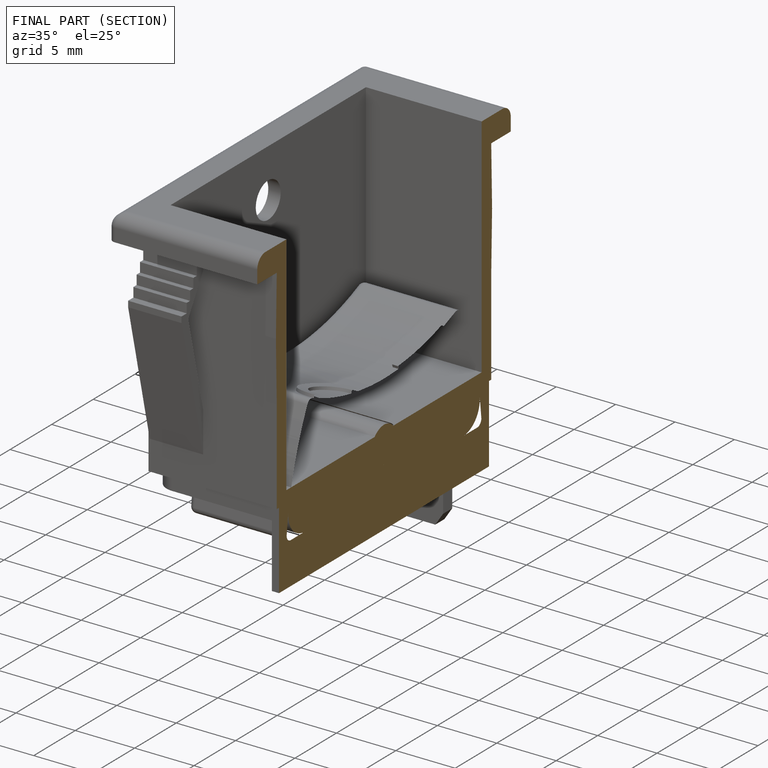
[diagram: finished part — half-section view (interior)]
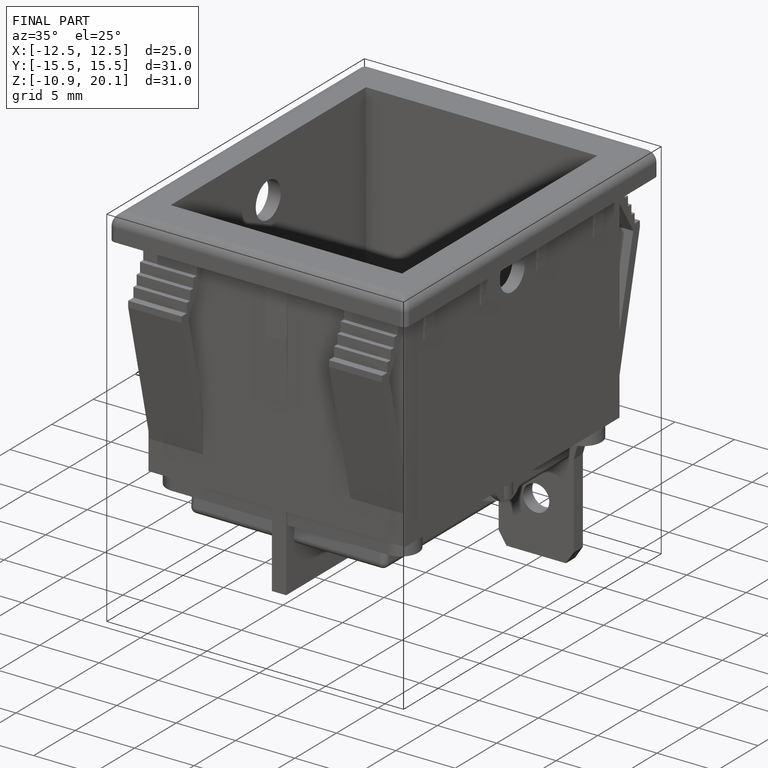
[diagram: finished part — iso view with bounding-box wireframe]
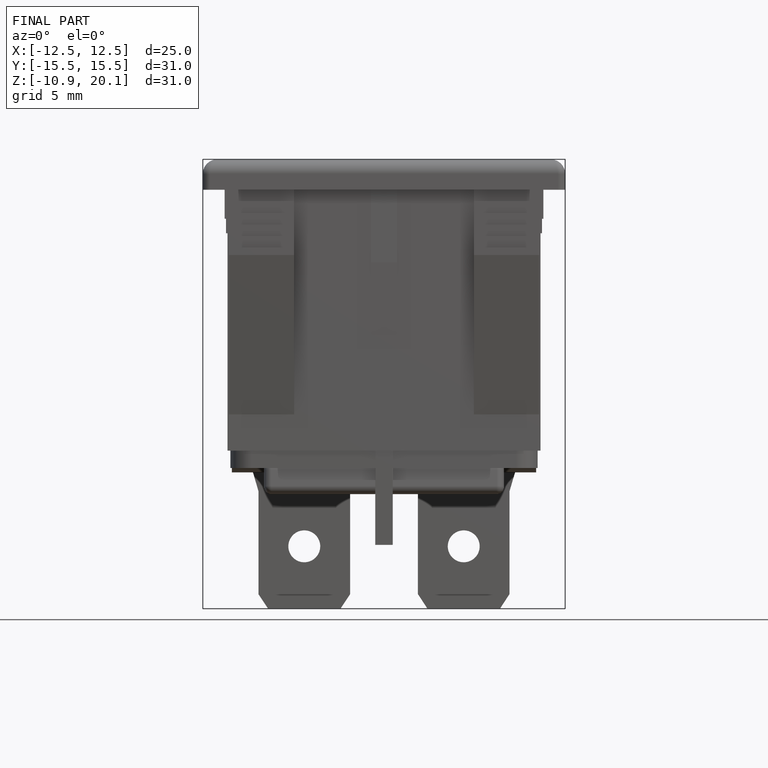
[diagram: finished part — front view with bounding-box wireframe]
